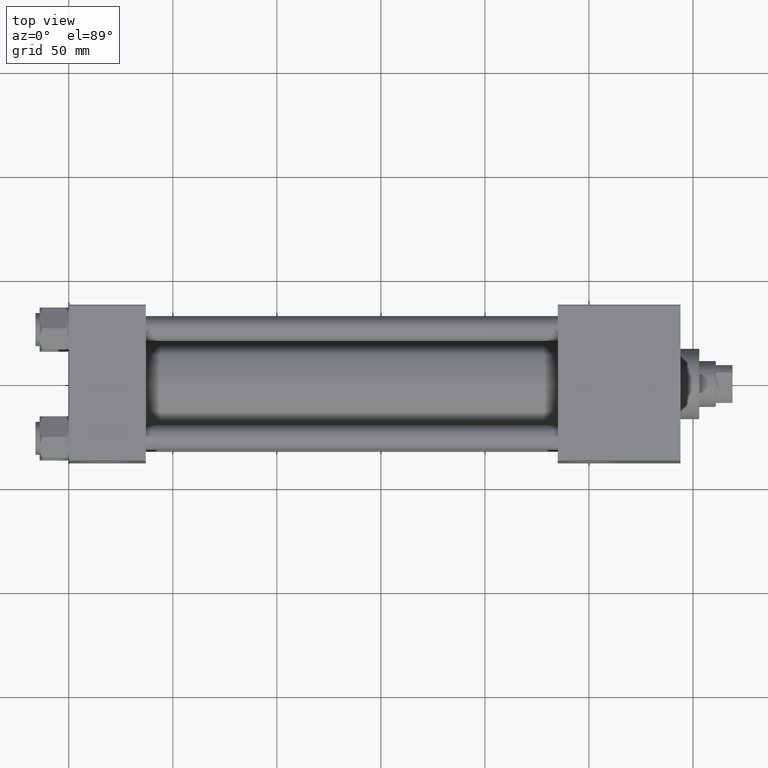
[diagram: clean part render]
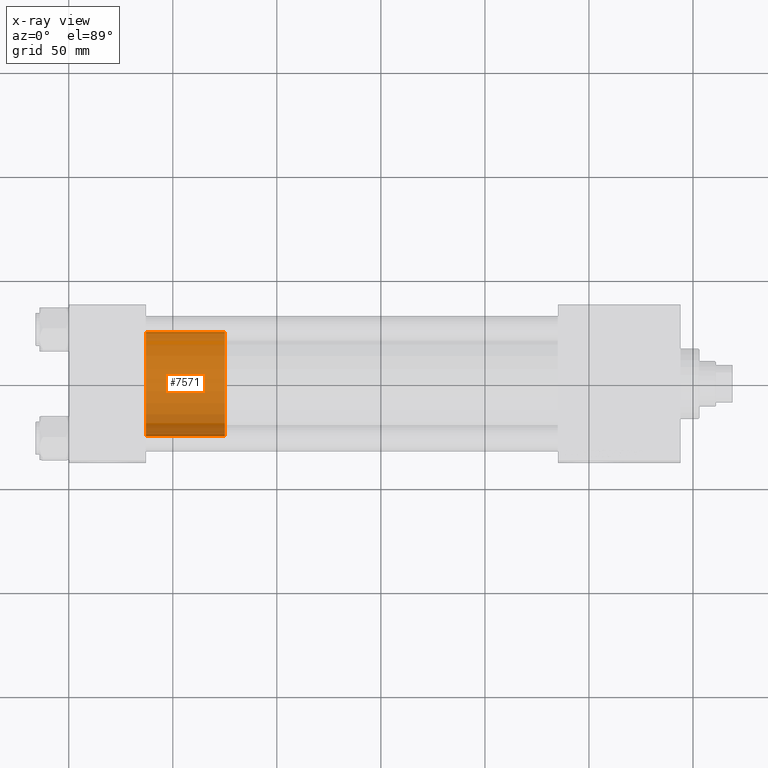
[diagram: x-ray — body ghosted, one internal face saturated and labeled with its STEP entity id]
A machine part, top view, then the same camera in x-ray: the body is ghosted and one INTERNAL B-rep face — a face not visible from any outside direction — is saturated and labeled: STEP entity #7571.
In plain terms, the highlighted cylindrical surface (partial cylindrical patch) has radius 25 mm, axis along (-1, 0, 0).
Its self-contained STEP definition (entity closure, byte-faithful):
#3536 = ORIENTED_EDGE ( 'NONE', *, *, #26505, .T. ) ;
#4633 = EDGE_CURVE ( 'NONE', #8954, #11177, #20598, .T. ) ;
#5163 = AXIS2_PLACEMENT_3D ( 'NONE', #21683, #41795, #21930 ) ;
#5702 = VERTEX_POINT ( 'NONE', #36687 ) ;
#6174 = CARTESIAN_POINT ( 'NONE',  ( -25.00000000000000000, 0.000000000000000000, 38.00000000000000000 ) ) ;
#6836 = EDGE_LOOP ( 'NONE', ( #43001, #49108, #3536, #28767 ) ) ;
#6982 = DIRECTION ( 'NONE',  ( -1.000000000000000000, 0.000000000000000000, 0.000000000000000000 ) ) ;
#7375 = CIRCLE ( 'NONE', #35821, 25.00000000000000000 ) ;
#7571 = ADVANCED_FACE ( 'NONE', ( #15382 ), #33726, .T. ) ;
#8954 = VERTEX_POINT ( 'NONE', #18571 ) ;
#11177 = VERTEX_POINT ( 'NONE', #16963 ) ;
#12480 = DIRECTION ( 'NONE',  ( 0.000000000000000000, 0.000000000000000000, 1.000000000000000000 ) ) ;
#12941 = CARTESIAN_POINT ( 'NONE',  ( 25.00000000000000000, 3.061616997868383043E-15, 38.00000000000000000 ) ) ;
#13223 = CARTESIAN_POINT ( 'NONE',  ( 0.000000000000000000, 0.000000000000000000, 38.00000000000000000 ) ) ;
#15382 = FACE_OUTER_BOUND ( 'NONE', #6836, .T. ) ;
#16963 = CARTESIAN_POINT ( 'NONE',  ( 25.00000000000000000, 3.061616997868383043E-15, 0.000000000000000000 ) ) ;
#18571 = CARTESIAN_POINT ( 'NONE',  ( 25.00000000000000000, 3.061616997868383043E-15, 38.00000000000000000 ) ) ;
#18809 = EDGE_CURVE ( 'NONE', #8954, #5702, #7375, .T. ) ;
#20598 = LINE ( 'NONE', #12941, #49273 ) ;
#21347 = VERTEX_POINT ( 'NONE', #44505 ) ;
#21683 = CARTESIAN_POINT ( 'NONE',  ( 0.000000000000000000, 0.000000000000000000, 0.000000000000000000 ) ) ;
#21930 = DIRECTION ( 'NONE',  ( 1.000000000000000000, 0.000000000000000000, 0.000000000000000000 ) ) ;
#24148 = EDGE_CURVE ( 'NONE', #5702, #21347, #48177, .T. ) ;
#24787 = DIRECTION ( 'NONE',  ( -0.000000000000000000, -0.000000000000000000, -1.000000000000000000 ) ) ;
#26505 = EDGE_CURVE ( 'NONE', #11177, #21347, #49060, .T. ) ;
#28756 = DIRECTION ( 'NONE',  ( 1.000000000000000000, 0.000000000000000000, 0.000000000000000000 ) ) ;
#28767 = ORIENTED_EDGE ( 'NONE', *, *, #24148, .F. ) ;
#33726 = CYLINDRICAL_SURFACE ( 'NONE', #43692, 25.00000000000000000 ) ;
#34394 = VECTOR ( 'NONE', #24787, 1000.000000000000000 ) ;
#35821 = AXIS2_PLACEMENT_3D ( 'NONE', #13223, #12480, #28756 ) ;
#36687 = CARTESIAN_POINT ( 'NONE',  ( -25.00000000000000000, 0.000000000000000000, 38.00000000000000000 ) ) ;
#39453 = DIRECTION ( 'NONE',  ( -0.000000000000000000, -0.000000000000000000, -1.000000000000000000 ) ) ;
#41795 = DIRECTION ( 'NONE',  ( 0.000000000000000000, 0.000000000000000000, 1.000000000000000000 ) ) ;
#43001 = ORIENTED_EDGE ( 'NONE', *, *, #18809, .F. ) ;
#43692 = AXIS2_PLACEMENT_3D ( 'NONE', #49229, #45676, #6982 ) ;
#44505 = CARTESIAN_POINT ( 'NONE',  ( -25.00000000000000000, 0.000000000000000000, 0.000000000000000000 ) ) ;
#45676 = DIRECTION ( 'NONE',  ( -0.000000000000000000, -0.000000000000000000, -1.000000000000000000 ) ) ;
#48177 = LINE ( 'NONE', #6174, #34394 ) ;
#49060 = CIRCLE ( 'NONE', #5163, 25.00000000000000000 ) ;
#49108 = ORIENTED_EDGE ( 'NONE', *, *, #4633, .T. ) ;
#49229 = CARTESIAN_POINT ( 'NONE',  ( 0.000000000000000000, 0.000000000000000000, 38.00000000000000000 ) ) ;
#49273 = VECTOR ( 'NONE', #39453, 1000.000000000000000 ) ;